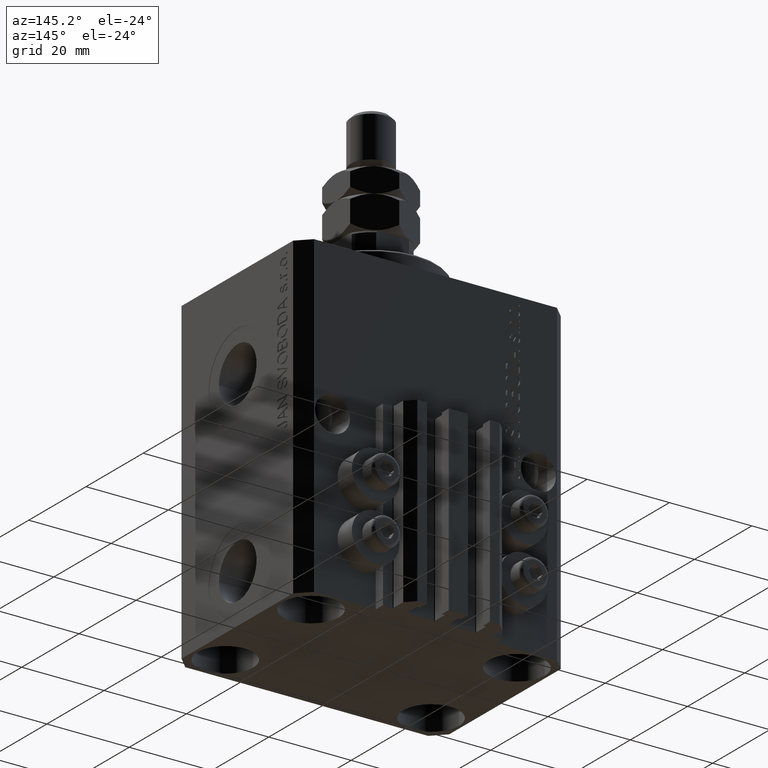
[diagram: clean part render]
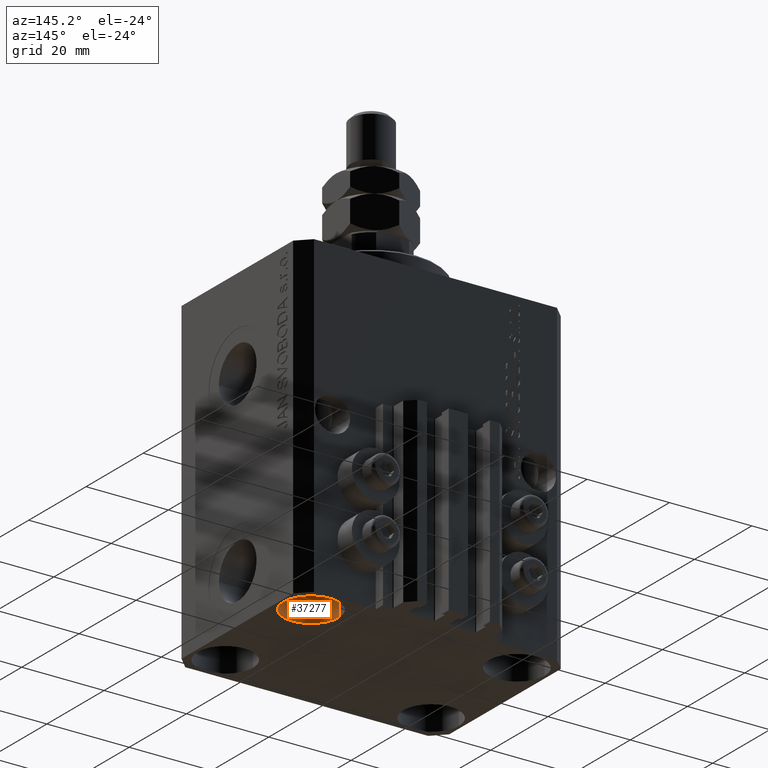
[diagram: same view with one face highlighted and labeled with its STEP entity id]
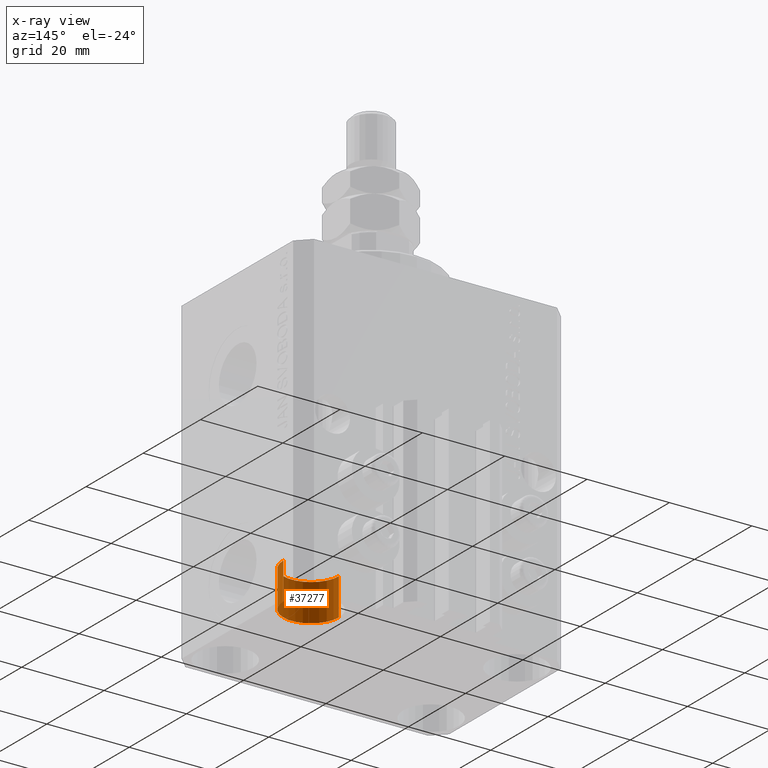
[diagram: x-ray of the same camera — body ghosted, the highlighted face saturated]
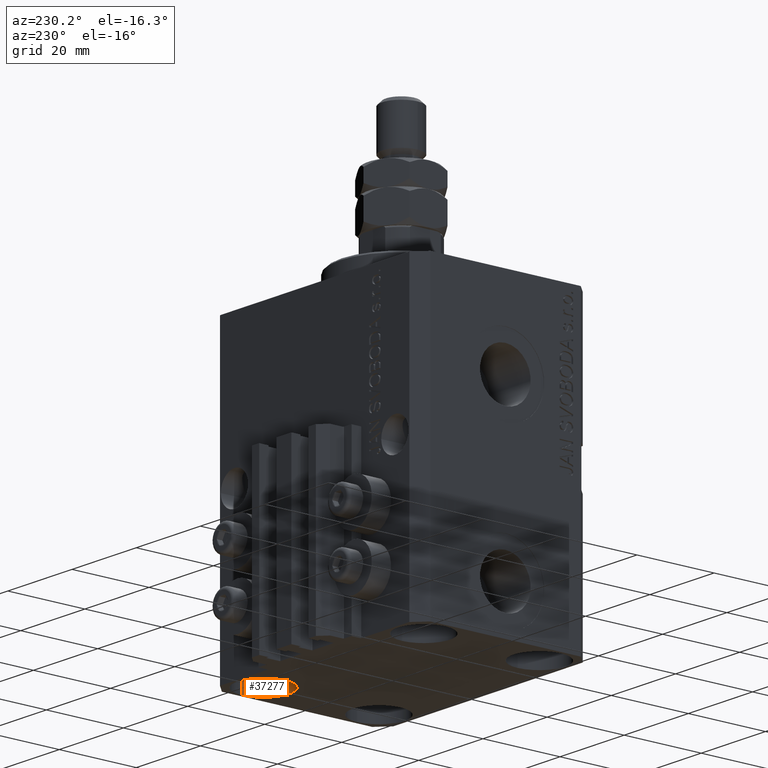
[diagram: same view with one face highlighted and labeled with its STEP entity id]
A machine part, auxiliary view. The second image highlights one B-rep face of the part: STEP entity #37277.
The next image is the same camera in x-ray: the body ghosted, the highlighted face saturated — about 0% of this face is hidden behind the body in this view.
A second angle (auxiliary view) of the same face is appended — the face is thin or edge-on in the first view.
In plain terms, the highlighted cylindrical surface (edge-blend (fillet) strip) has radius 6.75 mm, axis along (-0, -0, -1).
Its self-contained STEP definition (entity closure, byte-faithful):
#190 = EDGE_LOOP ( 'NONE', ( #4950, #7997, #15310, #20113 ) ) ;
#316 = CARTESIAN_POINT ( 'NONE',  ( 31.74999999995845101, 15.00000000000000888, -68.00000000000000000 ) ) ;
#1214 = DIRECTION ( 'NONE',  ( 1.000000000000000000, 0.000000000000000000, 0.000000000000000000 ) ) ;
#1839 = CARTESIAN_POINT ( 'NONE',  ( 31.74999999995845101, 15.00000000000000888, -77.00000000000000000 ) ) ;
#3875 = AXIS2_PLACEMENT_3D ( 'NONE', #34199, #18989, #22736 ) ;
#4938 = LINE ( 'NONE', #20865, #10853 ) ;
#4950 = ORIENTED_EDGE ( 'NONE', *, *, #41439, .T. ) ;
#5599 = VERTEX_POINT ( 'NONE', #316 ) ;
#6102 = AXIS2_PLACEMENT_3D ( 'NONE', #45339, #7719, #40850 ) ;
#7719 = DIRECTION ( 'NONE',  ( -0.000000000000000000, -0.000000000000000000, 1.000000000000000000 ) ) ;
#7997 = ORIENTED_EDGE ( 'NONE', *, *, #31879, .T. ) ;
#10853 = VECTOR ( 'NONE', #31349, 1000.000000000000000 ) ;
#11295 = FACE_OUTER_BOUND ( 'NONE', #190, .T. ) ;
#11757 = EDGE_CURVE ( 'NONE', #23556, #40954, #49027, .T. ) ;
#12778 = CARTESIAN_POINT ( 'NONE',  ( 18.25000000004154543, 15.00000000000000888, -68.00000000000000000 ) ) ;
#15276 = CYLINDRICAL_SURFACE ( 'NONE', #3875, 6.749999999958452790 ) ;
#15310 = ORIENTED_EDGE ( 'NONE', *, *, #11757, .F. ) ;
#18989 = DIRECTION ( 'NONE',  ( -0.000000000000000000, -0.000000000000000000, -1.000000000000000000 ) ) ;
#20113 = ORIENTED_EDGE ( 'NONE', *, *, #33170, .F. ) ;
#20865 = CARTESIAN_POINT ( 'NONE',  ( 31.74999999995845101, 15.00000000000000888, -68.00000000000000000 ) ) ;
#21773 = CARTESIAN_POINT ( 'NONE',  ( 18.25000000004154543, 15.00000000000000888, -68.00000000000000000 ) ) ;
#22736 = DIRECTION ( 'NONE',  ( -1.000000000000000000, 0.000000000000000000, 0.000000000000000000 ) ) ;
#23110 = AXIS2_PLACEMENT_3D ( 'NONE', #35348, #42096, #1214 ) ;
#23556 = VERTEX_POINT ( 'NONE', #28738 ) ;
#25301 = LINE ( 'NONE', #21773, #46693 ) ;
#28738 = CARTESIAN_POINT ( 'NONE',  ( 18.25000000004154543, 15.00000000000000888, -77.00000000000000000 ) ) ;
#31349 = DIRECTION ( 'NONE',  ( -0.000000000000000000, -0.000000000000000000, -1.000000000000000000 ) ) ;
#31874 = CIRCLE ( 'NONE', #23110, 6.749999999958452790 ) ;
#31879 = EDGE_CURVE ( 'NONE', #5599, #40954, #4938, .T. ) ;
#33170 = EDGE_CURVE ( 'NONE', #38330, #23556, #25301, .T. ) ;
#34199 = CARTESIAN_POINT ( 'NONE',  ( 24.99999999999999645, 15.00000000000000888, -68.00000000000000000 ) ) ;
#35348 = CARTESIAN_POINT ( 'NONE',  ( 24.99999999999999645, 15.00000000000000888, -68.00000000000000000 ) ) ;
#37277 = ADVANCED_FACE ( 'NONE', ( #11295 ), #15276, .F. ) ;
#38330 = VERTEX_POINT ( 'NONE', #12778 ) ;
#40497 = DIRECTION ( 'NONE',  ( -0.000000000000000000, -0.000000000000000000, -1.000000000000000000 ) ) ;
#40850 = DIRECTION ( 'NONE',  ( 1.000000000000000000, 0.000000000000000000, 0.000000000000000000 ) ) ;
#40954 = VERTEX_POINT ( 'NONE', #1839 ) ;
#41439 = EDGE_CURVE ( 'NONE', #38330, #5599, #31874, .T. ) ;
#42096 = DIRECTION ( 'NONE',  ( -0.000000000000000000, -0.000000000000000000, 1.000000000000000000 ) ) ;
#45339 = CARTESIAN_POINT ( 'NONE',  ( 24.99999999999999645, 15.00000000000000888, -77.00000000000000000 ) ) ;
#46693 = VECTOR ( 'NONE', #40497, 1000.000000000000000 ) ;
#49027 = CIRCLE ( 'NONE', #6102, 6.749999999958452790 ) ;